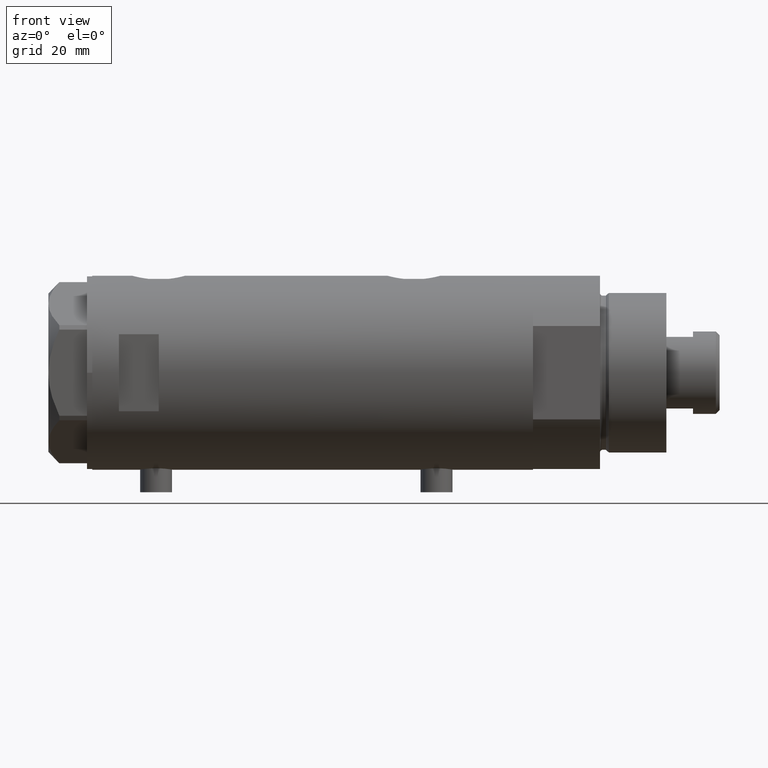
[diagram: clean part render]
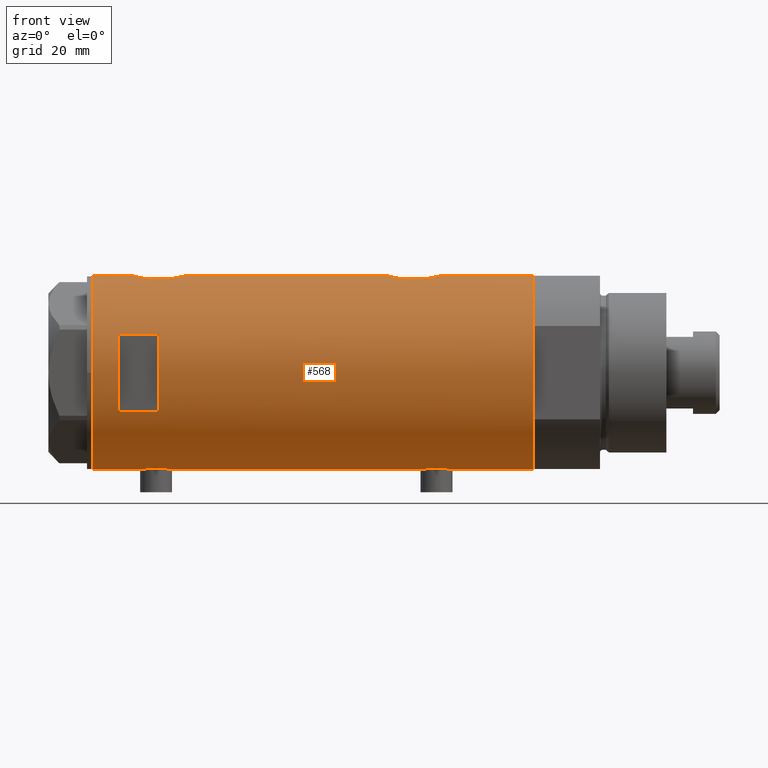
[diagram: same view with one face highlighted and labeled with its STEP entity id]
A machine part, front view. The second image highlights one B-rep face of the part: STEP entity #568.
In plain terms, the highlighted cylindrical surface (partial cylindrical patch) has radius 36.5 mm, axis along (-1, -0, 0).
Its self-contained STEP definition (entity closure, byte-faithful):
#8 = CARTESIAN_POINT ( 'NONE',  ( 36.50000000000000000, 4.344611676915099379E-19, -28.10000000000000142 ) ) ;
#19 = CARTESIAN_POINT ( 'NONE',  ( 36.18674680775578167, -4.776679548204628922, 66.68892316931247422 ) ) ;
#24 = VECTOR ( 'NONE', #3632, 1000.000000000000000 ) ;
#57 = VERTEX_POINT ( 'NONE', #1422 ) ;
#82 = CARTESIAN_POINT ( 'NONE',  ( 36.48988302519020976, -0.9927202255321161406, -28.13673010588698631 ) ) ;
#103 = CIRCLE ( 'NONE', #980, 36.50000000000000000 ) ;
#109 = DIRECTION ( 'NONE',  ( 1.000000000000000000, 0.000000000000000000, 0.000000000000000000 ) ) ;
#119 = DIRECTION ( 'NONE',  ( 1.000000000000000000, 0.000000000000000000, 0.000000000000000000 ) ) ;
#131 = CARTESIAN_POINT ( 'NONE',  ( -36.47262891311152089, -1.427622242603853175, 64.98824629211699744 ) ) ;
#166 = CARTESIAN_POINT ( 'NONE',  ( -36.01639592019627401, -5.922235714778413040, 60.90796802426914525 ) ) ;
#174 = VERTEX_POINT ( 'NONE', #3451 ) ;
#196 = CARTESIAN_POINT ( 'NONE',  ( -36.39558535855673682, -2.764807686268002218, -52.20894118545612628 ) ) ;
#197 = CARTESIAN_POINT ( 'NONE',  ( -35.96816095843706762, -6.208699946936197200, 58.07503622872215487 ) ) ;
#213 = VERTEX_POINT ( 'NONE', #449 ) ;
#222 = CARTESIAN_POINT ( 'NONE',  ( -36.44621655743048905, -2.016281777336080161, 52.97017023300883665 ) ) ;
#265 = ORIENTED_EDGE ( 'NONE', *, *, #1534, .F. ) ;
#267 = CARTESIAN_POINT ( 'NONE',  ( -35.96816095843705341, -6.208699946936208747, -47.42496377127785223 ) ) ;
#300 = EDGE_CURVE ( 'NONE', #2046, #2923, #2425, .T. ) ;
#304 = CARTESIAN_POINT ( 'NONE',  ( -36.09582946723049446, -5.421573071064202054, -49.73608278370488023 ) ) ;
#316 = CARTESIAN_POINT ( 'NONE',  ( 0.000000000000000000, 0.000000000000000000, 72.89999999999999147 ) ) ;
#394 = CARTESIAN_POINT ( 'NONE',  ( 36.09633718678917802, -5.417295330713079338, 66.30914867345214248 ) ) ;
#399 = FACE_OUTER_BOUND ( 'NONE', #3639, .T. ) ;
#402 = CARTESIAN_POINT ( 'NONE',  ( 14.49137674618942739, -33.50000000000000000, 72.89999999999999147 ) ) ;
#419 = EDGE_CURVE ( 'NONE', #174, #3142, #2276, .T. ) ;
#423 = B_SPLINE_CURVE_WITH_KNOTS ( 'NONE', 3,
 ( #1643, #2760, #506, #3877, #3084, #4581, #196, #1694, #3143, #3529, #4318, #1813, #2102, #304, #2550, #3294, #4774, #2532, #2129, #267, #3268, #3650, #4364, #4405, #4750, #1455, #4049, #1426, #4697, #4001, #1472, #1748, #1116, #2912, #2877, #1405, #3576, #2858, #2573, #3977, #638, #3549, #1380, #2901 ),
 .UNSPECIFIED., .F., .F.,
 ( 4, 2, 2, 2, 2, 2, 2, 2, 2, 2, 2, 2, 2, 2, 2, 2, 2, 2, 2, 2, 2, 4 ),
 ( 0.01957644481942644524, 0.02079966591703048817, 0.02202288701463452764, 0.02263449756343654390, 0.02324610811223856363, 0.02446932920984259616, 0.02569255030744663215, 0.02691577140505066468, 0.02752738195385267400, 0.02813899250265468333, 0.02936221360025868116, 0.03058543469786267552, 0.03119704524666467443, 0.03180865579546667682, 0.03303187689307068853, 0.03364348744187271173, 0.03425509799067472799, 0.03547831908827876746, 0.03670154018588280692, 0.03731315073468483012, 0.03792476128348684639, 0.03914798238109087891 ),
 .UNSPECIFIED. ) ;
#429 = CARTESIAN_POINT ( 'NONE',  ( 0.000000000000000000, 0.000000000000000000, -82.90000000000000568 ) ) ;
#438 = CARTESIAN_POINT ( 'NONE',  ( 36.44881677724179525, -1.995085670027224811, 48.08819654630536178 ) ) ;
#446 = EDGE_CURVE ( 'NONE', #57, #996, #2886, .T. ) ;
#449 = CARTESIAN_POINT ( 'NONE',  ( -36.50000000000000000, 4.469960816887838430E-15, -82.90000000000000568 ) ) ;
#480 = CARTESIAN_POINT ( 'NONE',  ( -36.19666146462961365, -4.704890678739097609, 54.76570140489218375 ) ) ;
#489 = CARTESIAN_POINT ( 'NONE',  ( 35.93373217836898448, -6.415110096330619349, 65.58704266355093182 ) ) ;
#506 = CARTESIAN_POINT ( 'NONE',  ( -36.49315367594273596, -0.8144497809045464498, -52.81039785554752086 ) ) ;
#523 = LINE ( 'NONE', #2018, #1889 ) ;
#528 = ORIENTED_EDGE ( 'NONE', *, *, #1097, .T. ) ;
#532 = CARTESIAN_POINT ( 'NONE',  ( -36.16096637594733210, -4.968588355849251847, 55.08665507182242749 ) ) ;
#555 = DIRECTION ( 'NONE',  ( 0.000000000000000000, 0.000000000000000000, 1.000000000000000000 ) ) ;
#560 = CARTESIAN_POINT ( 'NONE',  ( -36.40915499150420231, -2.580495338846549025, 53.20394986644524238 ) ) ;
#566 = VECTOR ( 'NONE', #4223, 1000.000000000000000 ) ;
#568 = ADVANCED_FACE ( 'NONE', ( #399, #1903 ), #2672, .T. ) ;
#570 = CARTESIAN_POINT ( 'NONE',  ( 36.50000000000000000, -0.5031001875915698252, -48.09999999999999432 ) ) ;
#605 = EDGE_CURVE ( 'NONE', #213, #3076, #523, .T. ) ;
#606 = EDGE_CURVE ( 'NONE', #1258, #3686, #1018, .T. ) ;
#617 = VERTEX_POINT ( 'NONE', #3473 ) ;
#638 = CARTESIAN_POINT ( 'NONE',  ( -36.47262891311152799, -1.427622242603851843, -40.51175370788298835 ) ) ;
#657 = CARTESIAN_POINT ( 'NONE',  ( 36.44931971524464842, -1.985988150549293341, 67.71366860531763621 ) ) ;
#673 = CARTESIAN_POINT ( 'NONE',  ( 36.34184199234172041, -3.427106516421254412, 48.49259086319967338 ) ) ;
#674 = CARTESIAN_POINT ( 'NONE',  ( 36.50000000000000000, 0.000000000000000000, -82.90000000000000568 ) ) ;
#685 = CARTESIAN_POINT ( 'NONE',  ( 36.29582892817135331, -3.881628320031160762, 67.12934434534989236 ) ) ;
#695 = CARTESIAN_POINT ( 'NONE',  ( 35.29999999999999716, -9.282241108697837362, -82.90000000000000568 ) ) ;
#749 = CARTESIAN_POINT ( 'NONE',  ( 36.50000000000000000, -0.5031001875915698252, 47.89999999999999858 ) ) ;
#775 = CARTESIAN_POINT ( 'NONE',  ( 36.29527920868844859, -3.886508670267140975, -47.32716275830865982 ) ) ;
#787 = CARTESIAN_POINT ( 'NONE',  ( 0.000000000000000000, 0.000000000000000000, 57.90000000000014779 ) ) ;
#803 = CARTESIAN_POINT ( 'NONE',  ( 35.69273631926343882, -7.635692914629145456, -44.56200195651491214 ) ) ;
#804 = VECTOR ( 'NONE', #2118, 1000.000000000000000 ) ;
#824 = ORIENTED_EDGE ( 'NONE', *, *, #852, .F. ) ;
#843 = VERTEX_POINT ( 'NONE', #3714 ) ;
#852 = EDGE_CURVE ( 'NONE', #4414, #3686, #2622, .T. ) ;
#856 = CARTESIAN_POINT ( 'NONE',  ( 35.79656810172927806, -7.133411935499478496, -45.11254878557677728 ) ) ;
#862 = CARTESIAN_POINT ( 'NONE',  ( 14.49137674618942739, -33.50000000000000000, 57.89999999999999147 ) ) ;
#866 = CARTESIAN_POINT ( 'NONE',  ( -36.36635911126388976, -3.125815113635431075, 53.48394399592097415 ) ) ;
#882 = DIRECTION ( 'NONE',  ( -0.000000000000000000, -0.000000000000000000, -1.000000000000000000 ) ) ;
#892 = CARTESIAN_POINT ( 'NONE',  ( -36.50000000000000000, -0.4136690418839307215, 65.15000000000001990 ) ) ;
#898 = CARTESIAN_POINT ( 'NONE',  ( 36.41856252531823657, -2.482507212621167358, -47.79956512846506200 ) ) ;
#914 = EDGE_CURVE ( 'NONE', #57, #1058, #4755, .T. ) ;
#920 = CARTESIAN_POINT ( 'NONE',  ( -36.44454782745417276, -2.020757099930493350, 64.81785864420996290 ) ) ;
#950 = CARTESIAN_POINT ( 'NONE',  ( 35.93363298843767950, -6.415574104180970849, -45.78651472888893181 ) ) ;
#962 = CARTESIAN_POINT ( 'NONE',  ( 14.49137674618942739, -33.50000000000000000, -82.90000000000000568 ) ) ;
#964 = CARTESIAN_POINT ( 'NONE',  ( -36.39621039793029666, -2.776267550998798850, 64.51430753106778582 ) ) ;
#980 = AXIS2_PLACEMENT_3D ( 'NONE', #2693, #555, #1592 ) ;
#996 = VERTEX_POINT ( 'NONE', #4304 ) ;
#1018 = LINE ( 'NONE', #3927, #804 ) ;
#1028 = CARTESIAN_POINT ( 'NONE',  ( -36.50000000000000000, 2.196845629780489385E-16, 65.15000000000000568 ) ) ;
#1058 = VERTEX_POINT ( 'NONE', #4587 ) ;
#1078 = ORIENTED_EDGE ( 'NONE', *, *, #2900, .F. ) ;
#1081 = EDGE_CURVE ( 'NONE', #617, #2923, #1478, .T. ) ;
#1085 = CARTESIAN_POINT ( 'NONE',  ( 36.18850502651836365, -4.779575967213807175, -46.89779152890154279 ) ) ;
#1097 = EDGE_CURVE ( 'NONE', #3580, #1058, #4371, .T. ) ;
#1116 = CARTESIAN_POINT ( 'NONE',  ( -36.21356728133256553, -4.566014386638768130, -42.32737339235254126 ) ) ;
#1129 = VECTOR ( 'NONE', #1379, 1000.000000000000000 ) ;
#1192 = CARTESIAN_POINT ( 'NONE',  ( 36.50000000000000000, 4.344611676915099379E-19, -28.10000000000000142 ) ) ;
#1222 = EDGE_CURVE ( 'NONE', #3233, #2046, #2630, .T. ) ;
#1240 = CARTESIAN_POINT ( 'NONE',  ( -35.96095902952617251, -6.249754054240892920, 58.48341234579529413 ) ) ;
#1241 = CARTESIAN_POINT ( 'NONE',  ( 36.44931971524465553, -1.985988150549293341, -28.28633139468236379 ) ) ;
#1255 = CARTESIAN_POINT ( 'NONE',  ( -36.02782481185207075, -5.852531070448503847, 61.10277008952189703 ) ) ;
#1256 = CARTESIAN_POINT ( 'NONE',  ( 35.72583162417571145, -7.484316398521975167, -31.44957356280499283 ) ) ;
#1258 = VERTEX_POINT ( 'NONE', #8 ) ;
#1282 = CARTESIAN_POINT ( 'NONE',  ( -36.30176144752230982, -3.814344296723633843, 53.93198298049745176 ) ) ;
#1328 = EDGE_CURVE ( 'NONE', #2407, #3233, #3947, .T. ) ;
#1353 = ORIENTED_EDGE ( 'NONE', *, *, #914, .F. ) ;
#1372 = DIRECTION ( 'NONE',  ( 0.000000000000000000, 0.000000000000000000, 1.000000000000000000 ) ) ;
#1379 = DIRECTION ( 'NONE',  ( 0.000000000000000000, 0.000000000000000000, 1.000000000000000000 ) ) ;
#1380 = CARTESIAN_POINT ( 'NONE',  ( -36.50000000000000711, -0.4136690418839297223, -40.35000000000000853 ) ) ;
#1405 = CARTESIAN_POINT ( 'NONE',  ( -36.36656776002987357, -3.137002187003164799, -41.17863590726366851 ) ) ;
#1420 = DIRECTION ( 'NONE',  ( 0.000000000000000000, 0.000000000000000000, 1.000000000000000000 ) ) ;
#1422 = CARTESIAN_POINT ( 'NONE',  ( 35.29999999999999716, -9.282241108697837362, -41.82021504754764862 ) ) ;
#1426 = CARTESIAN_POINT ( 'NONE',  ( -36.06543684817881257, -5.617774235967372576, -43.83045552028299596 ) ) ;
#1432 = VECTOR ( 'NONE', #3533, 1000.000000000000000 ) ;
#1441 = ORIENTED_EDGE ( 'NONE', *, *, #2845, .T. ) ;
#1455 = CARTESIAN_POINT ( 'NONE',  ( -36.01639592019626690, -5.922235714778424587, -44.59203197573086186 ) ) ;
#1472 = CARTESIAN_POINT ( 'NONE',  ( -36.16125812922425098, -4.962923794285021728, -42.79553914089240152 ) ) ;
#1478 = LINE ( 'NONE', #674, #24 ) ;
#1481 = DIRECTION ( 'NONE',  ( 1.000000000000000000, 0.000000000000000000, 0.000000000000000000 ) ) ;
#1496 = LINE ( 'NONE', #4434, #4132 ) ;
#1534 = EDGE_CURVE ( 'NONE', #2199, #174, #1496, .T. ) ;
#1575 = CARTESIAN_POINT ( 'NONE',  ( 35.79656810172927806, -7.133411935499478496, 50.88745121442323693 ) ) ;
#1592 = DIRECTION ( 'NONE',  ( 1.000000000000000000, 0.000000000000000000, 0.000000000000000000 ) ) ;
#1603 = CARTESIAN_POINT ( 'NONE',  ( 36.12724769814495573, -5.207618053557751203, -29.55935879511536157 ) ) ;
#1610 = ORIENTED_EDGE ( 'NONE', *, *, #1081, .T. ) ;
#1621 = EDGE_CURVE ( 'NONE', #213, #3580, #103, .T. ) ;
#1624 = CARTESIAN_POINT ( 'NONE',  ( -36.49297138689432529, -0.8222528563518540778, 65.10933112053433547 ) ) ;
#1630 = CARTESIAN_POINT ( 'NONE',  ( 36.00092304812866928, -6.029438422680412302, 65.89308155573651504 ) ) ;
#1641 = CARTESIAN_POINT ( 'NONE',  ( -36.50000000000000000, 4.469960493369248271E-15, 52.65000000000001279 ) ) ;
#1643 = CARTESIAN_POINT ( 'NONE',  ( -36.50000000000000000, 4.469960493366092827E-15, -52.85000000000000853 ) ) ;
#1644 = CARTESIAN_POINT ( 'NONE',  ( -36.01675918113430441, -5.920026275461276910, 56.88560443482112561 ) ) ;
#1670 = CARTESIAN_POINT ( 'NONE',  ( -36.50000000000000000, -0.4082012689449559528, 52.65000000000000568 ) ) ;
#1675 = CARTESIAN_POINT ( 'NONE',  ( 36.44881677724179525, -1.995085670027224811, -47.91180345369464533 ) ) ;
#1694 = CARTESIAN_POINT ( 'NONE',  ( -36.36635911126386844, -3.125815113635437736, -52.01605600407904006 ) ) ;
#1695 = CARTESIAN_POINT ( 'NONE',  ( -36.21356728133256553, -4.566014386638760136, 63.17262660764745874 ) ) ;
#1698 = ORIENTED_EDGE ( 'NONE', *, *, #1883, .F. ) ;
#1703 = CARTESIAN_POINT ( 'NONE',  ( 36.29527920868844859, -3.886508670267140975, 48.67283724169136860 ) ) ;
#1723 = EDGE_CURVE ( 'NONE', #3983, #2407, #3930, .T. ) ;
#1748 = CARTESIAN_POINT ( 'NONE',  ( -36.19599073318030946, -4.702920041824402375, -42.47846168323421523 ) ) ;
#1757 = DIRECTION ( 'NONE',  ( 0.000000000000000000, 0.000000000000000000, 1.000000000000000000 ) ) ;
#1800 = CARTESIAN_POINT ( 'NONE',  ( 36.50000000000000000, 0.000000000000000000, -82.90000000000000568 ) ) ;
#1813 = CARTESIAN_POINT ( 'NONE',  ( -36.19666146462958523, -4.704890678739107379, -50.73429859510781625 ) ) ;
#1870 = ORIENTED_EDGE ( 'NONE', *, *, #1621, .T. ) ;
#1883 = EDGE_CURVE ( 'NONE', #617, #843, #2170, .T. ) ;
#1889 = VECTOR ( 'NONE', #1372, 1000.000000000000000 ) ;
#1890 = CARTESIAN_POINT ( 'NONE',  ( 35.83108131285855791, -6.958268797611352419, 50.71369216627174126 ) ) ;
#1898 = CARTESIAN_POINT ( 'NONE',  ( 35.39807338191550201, -8.909271871950330990, 62.55080382732786148 ) ) ;
#1903 = FACE_BOUND ( 'NONE', #3765, .T. ) ;
#1975 = CARTESIAN_POINT ( 'NONE',  ( -36.43335814606992784, -2.212659578761317469, 64.74876399169507124 ) ) ;
#1976 = CARTESIAN_POINT ( 'NONE',  ( 36.50000000000000000, -0.4962708696651104701, -28.10000000000000853 ) ) ;
#1983 = CARTESIAN_POINT ( 'NONE',  ( 35.29999999999999716, -9.282241108697837362, 61.62021504754764578 ) ) ;
#2018 = CARTESIAN_POINT ( 'NONE',  ( -36.50000000000000000, 4.469960816887838430E-15, -82.90000000000000568 ) ) ;
#2032 = CARTESIAN_POINT ( 'NONE',  ( 36.48960339336945680, -1.002724032967599488, -48.06224865973496208 ) ) ;
#2046 = VERTEX_POINT ( 'NONE', #4300 ) ;
#2053 = CARTESIAN_POINT ( 'NONE',  ( -36.02823773219771653, -5.849994928883547551, 56.69044898514355424 ) ) ;
#2078 = CARTESIAN_POINT ( 'NONE',  ( -36.46614432713123932, -1.622933015999963979, 52.85033402613154863 ) ) ;
#2102 = CARTESIAN_POINT ( 'NONE',  ( -36.16096637594732499, -4.968588355849264282, -50.41334492817760093 ) ) ;
#2105 = ORIENTED_EDGE ( 'NONE', *, *, #4333, .F. ) ;
#2118 = DIRECTION ( 'NONE',  ( 0.000000000000000000, 0.000000000000000000, 1.000000000000000000 ) ) ;
#2129 = CARTESIAN_POINT ( 'NONE',  ( -35.98855750525640929, -6.088954600884540547, -48.02430226150165993 ) ) ;
#2170 = B_SPLINE_CURVE_WITH_KNOTS ( 'NONE', 3,
 ( #3898, #3969, #3569, #657, #3996, #4291, #685, #2174, #19, #3717, #394, #1630, #489, #4107, #3447, #4402, #1898, #1983 ),
 .UNSPECIFIED., .F., .F.,
 ( 4, 2, 2, 2, 2, 2, 2, 2, 4 ),
 ( 0.01190956515753144838, 0.01339852714138287625, 0.01488748912523430584, 0.01637645110908573370, 0.01712093210101144763, 0.01786541309293716503, 0.01935437507678861718, 0.02084333706064007280, 0.02382126102834301526 ),
 .UNSPECIFIED. ) ;
#2174 = CARTESIAN_POINT ( 'NONE',  ( 36.21540437201188922, -4.554727782332259167, 66.80597629088626377 ) ) ;
#2199 = VERTEX_POINT ( 'NONE', #3697 ) ;
#2207 = CARTESIAN_POINT ( 'NONE',  ( 35.29999999999999716, -9.282241108697837362, -82.90000000000000568 ) ) ;
#2212 = VECTOR ( 'NONE', #1420, 1000.000000000000000 ) ;
#2252 = CARTESIAN_POINT ( 'NONE',  ( 36.34184199234172041, -3.427106516421254412, -47.50740913680033373 ) ) ;
#2262 = DIRECTION ( 'NONE',  ( -0.000000000000000000, -4.625929269271492422E-15, 1.000000000000000000 ) ) ;
#2276 = CIRCLE ( 'NONE', #3344, 36.50000000000000000 ) ;
#2303 = DIRECTION ( 'NONE',  ( 0.000000000000000000, 0.000000000000000000, 1.000000000000000000 ) ) ;
#2313 = LINE ( 'NONE', #695, #1432 ) ;
#2318 = ORIENTED_EDGE ( 'NONE', *, *, #1222, .F. ) ;
#2322 = CARTESIAN_POINT ( 'NONE',  ( 36.18674680775576746, -4.776679548204623593, -29.31107683068752223 ) ) ;
#2338 = AXIS2_PLACEMENT_3D ( 'NONE', #4564, #3416, #109 ) ;
#2388 = CARTESIAN_POINT ( 'NONE',  ( -35.98821803976955636, -6.090959022952108448, 60.31573883149418691 ) ) ;
#2407 = VERTEX_POINT ( 'NONE', #1641 ) ;
#2425 = CIRCLE ( 'NONE', #2338, 36.50000000000000000 ) ;
#2440 = CARTESIAN_POINT ( 'NONE',  ( -35.99659093586380010, -6.041447834568789865, 60.51422412014822783 ) ) ;
#2532 = CARTESIAN_POINT ( 'NONE',  ( -35.99695583620881223, -6.039273428153914658, -48.22224444987753600 ) ) ;
#2550 = CARTESIAN_POINT ( 'NONE',  ( -36.06605150775667568, -5.613853192123352542, -49.37765688272543940 ) ) ;
#2573 = CARTESIAN_POINT ( 'NONE',  ( -36.44454782745417276, -2.020757099930490241, -40.68214135579004420 ) ) ;
#2622 = B_SPLINE_CURVE_WITH_KNOTS ( 'NONE', 3,
 ( #4133, #4085, #2952, #3395, #3415, #1575, #1890, #3019, #4065, #2927, #4417, #1703, #673, #4124, #438, #4410, #749, #2785 ),
 .UNSPECIFIED., .F., .F.,
 ( 4, 2, 2, 2, 2, 2, 2, 2, 4 ),
 ( -0.01189883390545606184, -0.008924125429092075873, -0.008180448310001064635, -0.007436771190910053397, -0.005949416952728041330, -0.004462062714546030130, -0.002974708476364018930, -0.001487354238182008598, 0.000000000000000000 ),
 .UNSPECIFIED. ) ;
#2630 = LINE ( 'NONE', #4126, #3414 ) ;
#2636 = CARTESIAN_POINT ( 'NONE',  ( 35.39794035667549821, -8.909777761736840773, -42.74954159089456596 ) ) ;
#2648 = ORIENTED_EDGE ( 'NONE', *, *, #1723, .F. ) ;
#2652 = CARTESIAN_POINT ( 'NONE',  ( 36.41918031349423757, -2.473644131148924341, -28.39811654536808661 ) ) ;
#2665 = CARTESIAN_POINT ( 'NONE',  ( 35.52320828895290106, -8.411622242316138198, -43.59772865944614040 ) ) ;
#2672 = CYLINDRICAL_SURFACE ( 'NONE', #3644, 36.50000000000000000 ) ;
#2693 = CARTESIAN_POINT ( 'NONE',  ( 0.000000000000000000, 0.000000000000000000, -82.90000000000000568 ) ) ;
#2697 = CARTESIAN_POINT ( 'NONE',  ( -36.16125812922425098, -4.962923794285019063, 62.70446085910759138 ) ) ;
#2740 = CARTESIAN_POINT ( 'NONE',  ( -36.39558535855675103, -2.764807686267996001, 53.29105881454392346 ) ) ;
#2760 = CARTESIAN_POINT ( 'NONE',  ( -36.49999999999999289, -0.4082012689449579512, -52.85000000000000853 ) ) ;
#2762 = CARTESIAN_POINT ( 'NONE',  ( -36.26692673949090562, -4.128477002029507403, 54.19000012567833835 ) ) ;
#2785 = CARTESIAN_POINT ( 'NONE',  ( 36.50000000000000000, 0.000000000000000000, 47.89999999999999858 ) ) ;
#2787 = CARTESIAN_POINT ( 'NONE',  ( -36.26616882068471881, -4.135065845178862887, 63.60415055940097062 ) ) ;
#2845 = EDGE_CURVE ( 'NONE', #4414, #843, #2313, .T. ) ;
#2858 = CARTESIAN_POINT ( 'NONE',  ( -36.43335814606994205, -2.212659578761328127, -40.75123600830492165 ) ) ;
#2877 = CARTESIAN_POINT ( 'NONE',  ( -36.30107494031870630, -3.820993528321237509, -41.63693846463691983 ) ) ;
#2886 = LINE ( 'NONE', #2207, #1129 ) ;
#2900 = EDGE_CURVE ( 'NONE', #4669, #2199, #3888, .T. ) ;
#2901 = CARTESIAN_POINT ( 'NONE',  ( -36.50000000000000000, 7.463603853851042361E-16, -40.34999999999999432 ) ) ;
#2912 = CARTESIAN_POINT ( 'NONE',  ( -36.26616882068469749, -4.135065845178866439, -41.89584944059903648 ) ) ;
#2923 = VERTEX_POINT ( 'NONE', #3449 ) ;
#2927 = CARTESIAN_POINT ( 'NONE',  ( 36.12792682573228120, -5.214735277442337669, 49.35306882011299479 ) ) ;
#2952 = CARTESIAN_POINT ( 'NONE',  ( 35.52320828895290106, -8.411622242316138198, 52.40227134055386671 ) ) ;
#2974 = CARTESIAN_POINT ( 'NONE',  ( 36.29582892817134621, -3.881628320031158097, -28.87065565465010408 ) ) ;
#2988 = DIRECTION ( 'NONE',  ( 1.776356839400250465E-15, 1.000000000000000000, 4.562560375171875891E-15 ) ) ;
#3001 = CARTESIAN_POINT ( 'NONE',  ( 35.29999999999999716, -9.282241108697837362, -41.82021504754764862 ) ) ;
#3004 = DIRECTION ( 'NONE',  ( 0.000000000000000000, 0.000000000000000000, 1.000000000000000000 ) ) ;
#3019 = CARTESIAN_POINT ( 'NONE',  ( 35.93363298843767950, -6.415574104180970849, 50.21348527111108240 ) ) ;
#3037 = ORIENTED_EDGE ( 'NONE', *, *, #419, .F. ) ;
#3044 = CARTESIAN_POINT ( 'NONE',  ( 36.00092304812866928, -6.029438422680413190, -30.10691844426349562 ) ) ;
#3052 = CARTESIAN_POINT ( 'NONE',  ( -36.50000000000000000, 2.196845629780489385E-16, 65.15000000000000568 ) ) ;
#3076 = VERTEX_POINT ( 'NONE', #4323 ) ;
#3084 = CARTESIAN_POINT ( 'NONE',  ( -36.44621655743048905, -2.016281777336084158, -52.52982976699116335 ) ) ;
#3085 = CARTESIAN_POINT ( 'NONE',  ( -35.98855750525641639, -6.088954600884528112, 57.47569773849836139 ) ) ;
#3098 = VECTOR ( 'NONE', #1757, 1000.000000000000000 ) ;
#3113 = CARTESIAN_POINT ( 'NONE',  ( -36.36656776002988778, -3.137002187003155473, 64.32136409273633149 ) ) ;
#3142 = VERTEX_POINT ( 'NONE', #862 ) ;
#3143 = CARTESIAN_POINT ( 'NONE',  ( -36.35061318816139675, -3.303361544904985347, -51.90964041943019680 ) ) ;
#3144 = CARTESIAN_POINT ( 'NONE',  ( -35.96087392089862789, -6.250243747806507599, 59.30917490776180045 ) ) ;
#3160 = CARTESIAN_POINT ( 'NONE',  ( -36.50000000000000000, 4.469960816887838430E-15, -82.90000000000000568 ) ) ;
#3233 = VERTEX_POINT ( 'NONE', #3052 ) ;
#3268 = CARTESIAN_POINT ( 'NONE',  ( -35.96095902952615830, -6.249754054240904466, -47.01658765420470587 ) ) ;
#3294 = CARTESIAN_POINT ( 'NONE',  ( -36.02823773219771653, -5.849994928883562650, -48.80955101485645287 ) ) ;
#3322 = ORIENTED_EDGE ( 'NONE', *, *, #3325, .F. ) ;
#3325 = EDGE_CURVE ( 'NONE', #3142, #4669, #4559, .T. ) ;
#3344 = AXIS2_PLACEMENT_3D ( 'NONE', #787, #2262, #2988 ) ;
#3356 = EDGE_CURVE ( 'NONE', #3076, #3983, #423, .T. ) ;
#3393 = CARTESIAN_POINT ( 'NONE',  ( 36.09633718678917091, -5.417295330713080226, -29.69085132654786463 ) ) ;
#3395 = CARTESIAN_POINT ( 'NONE',  ( 35.69273631926343882, -7.635692914629145456, 51.43799804348507365 ) ) ;
#3414 = VECTOR ( 'NONE', #2303, 1000.000000000000000 ) ;
#3415 = CARTESIAN_POINT ( 'NONE',  ( 35.72742963626382107, -7.471989379615407323, 51.24937739587225138 ) ) ;
#3416 = DIRECTION ( 'NONE',  ( 0.000000000000000000, 0.000000000000000000, 1.000000000000000000 ) ) ;
#3439 = CARTESIAN_POINT ( 'NONE',  ( -36.46417279006302437, -1.628689148039105250, 64.93753938693815542 ) ) ;
#3441 = CARTESIAN_POINT ( 'NONE',  ( 35.79638309643554095, -7.141827709208429020, -31.08298073030451292 ) ) ;
#3447 = CARTESIAN_POINT ( 'NONE',  ( 35.72583162417571145, -7.484316398521971614, 64.55042643719502848 ) ) ;
#3449 = CARTESIAN_POINT ( 'NONE',  ( 36.50000000000000000, 0.000000000000000000, 82.90000000000000568 ) ) ;
#3451 = CARTESIAN_POINT ( 'NONE',  ( -14.49137674618942739, -33.50000000000000000, 57.89999999999999147 ) ) ;
#3473 = CARTESIAN_POINT ( 'NONE',  ( 36.50000000000000000, 4.344604608721388599E-19, 67.90000000000000568 ) ) ;
#3480 = CARTESIAN_POINT ( 'NONE',  ( -36.50000000000000000, 4.469960493369248271E-15, 52.65000000000001279 ) ) ;
#3511 = CARTESIAN_POINT ( 'NONE',  ( -36.49315367594273596, -0.8144497809045454506, 52.68960214445250045 ) ) ;
#3529 = CARTESIAN_POINT ( 'NONE',  ( -36.30176144752230272, -3.814344296723641836, -51.56801701950257666 ) ) ;
#3530 = CARTESIAN_POINT ( 'NONE',  ( -35.99695583620880512, -6.039273428153901335, 57.27775555012245690 ) ) ;
#3533 = DIRECTION ( 'NONE',  ( 0.000000000000000000, 0.000000000000000000, 1.000000000000000000 ) ) ;
#3549 = CARTESIAN_POINT ( 'NONE',  ( -36.49297138689432529, -0.8222528563518524125, -40.39066887946565743 ) ) ;
#3569 = CARTESIAN_POINT ( 'NONE',  ( 36.48988302519020266, -0.9927202255321159186, 67.86326989411300303 ) ) ;
#3576 = CARTESIAN_POINT ( 'NONE',  ( -36.39621039793030377, -2.776267550998805511, -40.98569246893223550 ) ) ;
#3580 = VERTEX_POINT ( 'NONE', #4486 ) ;
#3632 = DIRECTION ( 'NONE',  ( 0.000000000000000000, 0.000000000000000000, 1.000000000000000000 ) ) ;
#3639 = EDGE_LOOP ( 'NONE', ( #3695, #1870, #528, #1353, #4440, #2105, #4701, #824, #1441, #1698, #1610, #4343, #2318, #3842, #2648, #3945 ) ) ;
#3644 = AXIS2_PLACEMENT_3D ( 'NONE', #429, #3004, #119 ) ;
#3650 = CARTESIAN_POINT ( 'NONE',  ( -35.96087392089862078, -6.250243747806522698, -46.19082509223819244 ) ) ;
#3664 = DIRECTION ( 'NONE',  ( -0.000000000000000000, 0.000000000000000000, -1.000000000000000000 ) ) ;
#3668 = CARTESIAN_POINT ( 'NONE',  ( 36.00068527486602221, -6.030855700422095289, -46.09201327127355086 ) ) ;
#3686 = VERTEX_POINT ( 'NONE', #4553 ) ;
#3695 = ORIENTED_EDGE ( 'NONE', *, *, #605, .F. ) ;
#3697 = CARTESIAN_POINT ( 'NONE',  ( -14.49137674618942739, -33.50000000000000000, 72.89999999999999147 ) ) ;
#3709 = CARTESIAN_POINT ( 'NONE',  ( 36.21540437201188922, -4.554727782332255615, -29.19402370911373978 ) ) ;
#3710 = B_SPLINE_CURVE_WITH_KNOTS ( 'NONE', 3,
 ( #1192, #1976, #82, #1241, #2652, #4158, #2974, #3709, #2322, #1603, #3393, #3044, #4101, #3441, #1256, #3755, #4541, #4176 ),
 .UNSPECIFIED., .F., .F.,
 ( 4, 2, 2, 2, 2, 2, 2, 2, 4 ),
 ( 0.01190956515753144491, 0.01339852714138289880, 0.01488748912523435095, 0.01637645110908580309, 0.01712093210101153090, 0.01786541309293725524, 0.01935437507678869698, 0.02084333706064013872, 0.02382126102834301179 ),
 .UNSPECIFIED. ) ;
#3714 = CARTESIAN_POINT ( 'NONE',  ( 35.29999999999999716, -9.282241108697837362, 61.62021504754764578 ) ) ;
#3717 = CARTESIAN_POINT ( 'NONE',  ( 36.12724769814495573, -5.207618053557753868, 66.44064120488465619 ) ) ;
#3755 = CARTESIAN_POINT ( 'NONE',  ( 35.52323553852026095, -8.411295122831244697, -32.60247607048910368 ) ) ;
#3763 = CARTESIAN_POINT ( 'NONE',  ( 35.72742963626382107, -7.471989379615407323, -44.75062260412776283 ) ) ;
#3765 = EDGE_LOOP ( 'NONE', ( #3037, #265, #1078, #3322 ) ) ;
#3799 = CARTESIAN_POINT ( 'NONE',  ( -36.06605150775668278, -5.613853192123342772, 56.12234311727456770 ) ) ;
#3831 = CARTESIAN_POINT ( 'NONE',  ( 35.29999999999999716, -9.282241108697837362, 54.17978495245235138 ) ) ;
#3842 = ORIENTED_EDGE ( 'NONE', *, *, #1328, .F. ) ;
#3850 = CARTESIAN_POINT ( 'NONE',  ( -36.19599073318029525, -4.702920041824397934, 63.02153831676577056 ) ) ;
#3877 = CARTESIAN_POINT ( 'NONE',  ( -36.46614432713122511, -1.622933015999966200, -52.64966597386846558 ) ) ;
#3888 = CIRCLE ( 'NONE', #4430, 36.50000000000000000 ) ;
#3898 = CARTESIAN_POINT ( 'NONE',  ( 36.50000000000000000, 4.344604608721388599E-19, 67.90000000000000568 ) ) ;
#3905 = CARTESIAN_POINT ( 'NONE',  ( -36.14410773716529945, -5.085921866747741049, 62.53835878420471772 ) ) ;
#3927 = CARTESIAN_POINT ( 'NONE',  ( 36.50000000000000000, 0.000000000000000000, -82.90000000000000568 ) ) ;
#3930 = LINE ( 'NONE', #3160, #2212 ) ;
#3945 = ORIENTED_EDGE ( 'NONE', *, *, #3356, .F. ) ;
#3947 = B_SPLINE_CURVE_WITH_KNOTS ( 'NONE', 3,
 ( #3480, #1670, #3511, #2078, #222, #560, #2740, #866, #4262, #1282, #2762, #480, #532, #4224, #3799, #2053, #1644, #3530, #3085, #197, #1240, #3144, #4582, #2388, #2440, #166, #1255, #4189, #4243, #3905, #2697, #3850, #1695, #2787, #4540, #3113, #964, #1975, #920, #3439, #131, #1624, #892, #1028 ),
 .UNSPECIFIED., .F., .F.,
 ( 4, 2, 2, 2, 2, 2, 2, 2, 2, 2, 2, 2, 2, 2, 2, 2, 2, 2, 2, 2, 2, 4 ),
 ( 0.01957644481942640707, 0.02079966591703042919, 0.02202288701463445131, 0.02263449756343646410, 0.02324610811223847689, 0.02446932920984250248, 0.02569255030744652807, 0.02691577140505055366, 0.02752738195385255604, 0.02813899250265455843, 0.02936221360025858054, 0.03058543469786260266, 0.03119704524666461545, 0.03180865579546662825, 0.03303187689307066771, 0.03364348744187267704, 0.03425509799067469330, 0.03547831908827872582, 0.03670154018588275141, 0.03731315073468476073, 0.03792476128348677700, 0.03914798238109080952 ),
 .UNSPECIFIED. ) ;
#3969 = CARTESIAN_POINT ( 'NONE',  ( 36.50000000000000000, -0.4962708696651115803, 67.90000000000000568 ) ) ;
#3977 = CARTESIAN_POINT ( 'NONE',  ( -36.46417279006303858, -1.628689148039105250, -40.56246061306183748 ) ) ;
#3983 = VERTEX_POINT ( 'NONE', #4474 ) ;
#3996 = CARTESIAN_POINT ( 'NONE',  ( 36.41918031349423757, -2.473644131148929226, 67.60188345463190274 ) ) ;
#4001 = CARTESIAN_POINT ( 'NONE',  ( -36.14410773716529235, -5.085921866747748155, -42.96164121579527517 ) ) ;
#4049 = CARTESIAN_POINT ( 'NONE',  ( -36.02782481185207075, -5.852531070448518058, -44.39722991047811718 ) ) ;
#4065 = CARTESIAN_POINT ( 'NONE',  ( 36.00068527486602221, -6.030855700422095289, 49.90798672872647046 ) ) ;
#4085 = CARTESIAN_POINT ( 'NONE',  ( 35.39794035667549821, -8.909777761736840773, 53.25045840910545536 ) ) ;
#4101 = CARTESIAN_POINT ( 'NONE',  ( 35.93373217836898448, -6.415110096330614020, -30.41295733644907173 ) ) ;
#4107 = CARTESIAN_POINT ( 'NONE',  ( 35.79638309643554805, -7.141827709208436126, 64.91701926969550129 ) ) ;
#4124 = CARTESIAN_POINT ( 'NONE',  ( 36.41856252531823657, -2.482507212621167358, 48.20043487153495931 ) ) ;
#4126 = CARTESIAN_POINT ( 'NONE',  ( -36.50000000000000000, 4.469960816887838430E-15, -82.90000000000000568 ) ) ;
#4132 = VECTOR ( 'NONE', #882, 1000.000000000000000 ) ;
#4133 = CARTESIAN_POINT ( 'NONE',  ( 35.29999999999999716, -9.282241108697837362, 54.17978495245235138 ) ) ;
#4158 = CARTESIAN_POINT ( 'NONE',  ( 36.34247810649306132, -3.420510937483960845, -28.69013481598272719 ) ) ;
#4176 = CARTESIAN_POINT ( 'NONE',  ( 35.29999999999999716, -9.282241108697837362, -34.37978495245235422 ) ) ;
#4189 = CARTESIAN_POINT ( 'NONE',  ( -36.06543684817879836, -5.617774235967360141, 61.66954447971700404 ) ) ;
#4223 = DIRECTION ( 'NONE',  ( 0.000000000000000000, 0.000000000000000000, 1.000000000000000000 ) ) ;
#4224 = CARTESIAN_POINT ( 'NONE',  ( -36.09582946723049446, -5.421573071064185179, 55.76391721629512688 ) ) ;
#4243 = CARTESIAN_POINT ( 'NONE',  ( -36.09514898390869320, -5.426114745500152381, 62.02838652946137188 ) ) ;
#4251 = CARTESIAN_POINT ( 'NONE',  ( 35.83108131285855791, -6.958268797611352419, -45.28630783372827295 ) ) ;
#4262 = CARTESIAN_POINT ( 'NONE',  ( -36.35061318816141096, -3.303361544904979574, 53.59035958056982452 ) ) ;
#4291 = CARTESIAN_POINT ( 'NONE',  ( 36.34247810649305421, -3.420510937483963065, 67.30986518401726926 ) ) ;
#4300 = CARTESIAN_POINT ( 'NONE',  ( -36.50000000000000000, 4.469960816887838430E-15, 82.90000000000000568 ) ) ;
#4304 = CARTESIAN_POINT ( 'NONE',  ( 35.29999999999999716, -9.282241108697837362, -34.37978495245235422 ) ) ;
#4318 = CARTESIAN_POINT ( 'NONE',  ( -36.26692673949090562, -4.128477002029516285, -51.30999987432166876 ) ) ;
#4323 = CARTESIAN_POINT ( 'NONE',  ( -36.50000000000000000, 4.469960493366092827E-15, -52.85000000000000853 ) ) ;
#4333 = EDGE_CURVE ( 'NONE', #1258, #996, #3710, .T. ) ;
#4343 = ORIENTED_EDGE ( 'NONE', *, *, #300, .F. ) ;
#4364 = CARTESIAN_POINT ( 'NONE',  ( -35.96794010939611042, -6.209972807992086175, -45.78444451008647320 ) ) ;
#4371 = LINE ( 'NONE', #1800, #3098 ) ;
#4380 = CARTESIAN_POINT ( 'NONE',  ( 36.12792682573228120, -5.214735277442337669, -46.64693117988700521 ) ) ;
#4402 = CARTESIAN_POINT ( 'NONE',  ( 35.52323553852026095, -8.411295122831241144, 63.39752392951088211 ) ) ;
#4405 = CARTESIAN_POINT ( 'NONE',  ( -35.98821803976953504, -6.090959022952123547, -45.18426116850582730 ) ) ;
#4410 = CARTESIAN_POINT ( 'NONE',  ( 36.48960339336945680, -1.002724032967599488, 47.93775134026500950 ) ) ;
#4414 = VERTEX_POINT ( 'NONE', #3831 ) ;
#4417 = CARTESIAN_POINT ( 'NONE',  ( 36.18850502651836365, -4.779575967213807175, 49.10220847109845721 ) ) ;
#4430 = AXIS2_PLACEMENT_3D ( 'NONE', #316, #3664, #1481 ) ;
#4434 = CARTESIAN_POINT ( 'NONE',  ( -14.49137674618942739, -33.50000000000000000, -82.90000000000000568 ) ) ;
#4440 = ORIENTED_EDGE ( 'NONE', *, *, #446, .T. ) ;
#4474 = CARTESIAN_POINT ( 'NONE',  ( -36.50000000000000000, 7.463603853851042361E-16, -40.34999999999999432 ) ) ;
#4486 = CARTESIAN_POINT ( 'NONE',  ( 36.50000000000000000, 0.000000000000000000, -82.90000000000000568 ) ) ;
#4540 = CARTESIAN_POINT ( 'NONE',  ( -36.30107494031871340, -3.820993528321226851, 63.86306153536310148 ) ) ;
#4541 = CARTESIAN_POINT ( 'NONE',  ( 35.39807338191550201, -8.909271871950332766, -33.44919617267214562 ) ) ;
#4553 = CARTESIAN_POINT ( 'NONE',  ( 36.50000000000000000, 0.000000000000000000, 47.89999999999999858 ) ) ;
#4559 = LINE ( 'NONE', #962, #566 ) ;
#4564 = CARTESIAN_POINT ( 'NONE',  ( 0.000000000000000000, 0.000000000000000000, 82.90000000000000568 ) ) ;
#4565 = CARTESIAN_POINT ( 'NONE',  ( 36.50000000000000000, 0.000000000000000000, -48.10000000000000142 ) ) ;
#4581 = CARTESIAN_POINT ( 'NONE',  ( -36.40915499150420231, -2.580495338846554354, -52.29605013355477183 ) ) ;
#4582 = CARTESIAN_POINT ( 'NONE',  ( -35.96794010939611042, -6.209972807992070187, 59.71555548991352680 ) ) ;
#4587 = CARTESIAN_POINT ( 'NONE',  ( 36.50000000000000000, 0.000000000000000000, -48.10000000000000142 ) ) ;
#4669 = VERTEX_POINT ( 'NONE', #402 ) ;
#4697 = CARTESIAN_POINT ( 'NONE',  ( -36.09514898390870741, -5.426114745500162151, -43.47161347053861391 ) ) ;
#4701 = ORIENTED_EDGE ( 'NONE', *, *, #606, .T. ) ;
#4750 = CARTESIAN_POINT ( 'NONE',  ( -35.99659093586380720, -6.041447834568803188, -44.98577587985177217 ) ) ;
#4755 = B_SPLINE_CURVE_WITH_KNOTS ( 'NONE', 3,
 ( #3001, #2636, #2665, #803, #3763, #856, #4251, #950, #3668, #4380, #1085, #775, #2252, #898, #1675, #2032, #570, #4565 ),
 .UNSPECIFIED., .F., .F.,
 ( 4, 2, 2, 2, 2, 2, 2, 2, 4 ),
 ( -0.01189883390545606184, -0.008924125429092075873, -0.008180448310001064635, -0.007436771190910053397, -0.005949416952728041330, -0.004462062714546030130, -0.002974708476364018930, -0.001487354238182008598, 0.000000000000000000 ),
 .UNSPECIFIED. ) ;
#4774 = CARTESIAN_POINT ( 'NONE',  ( -36.01675918113430441, -5.920026275461289345, -48.61439556517890281 ) ) ;